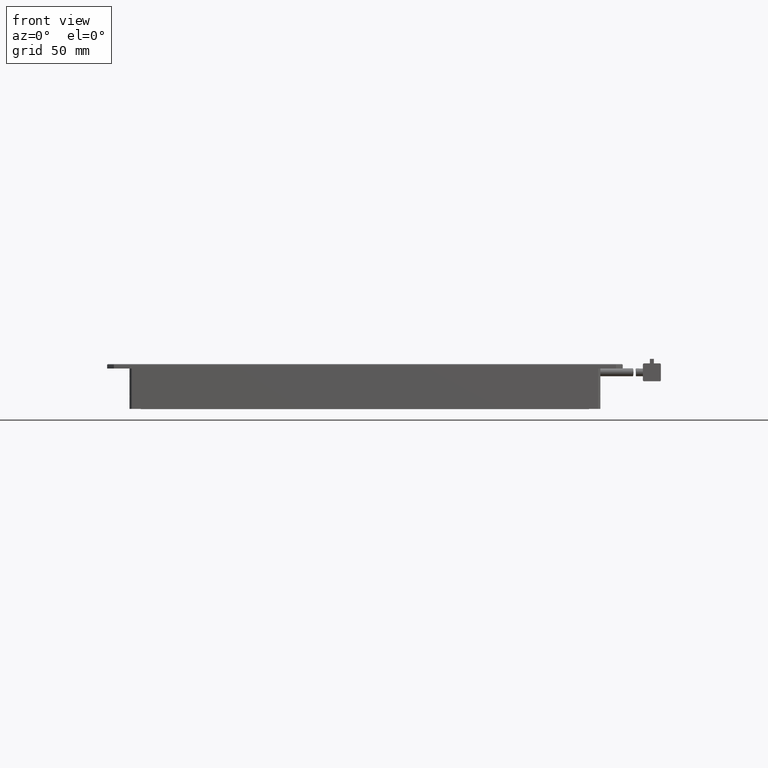
[diagram: clean part render]
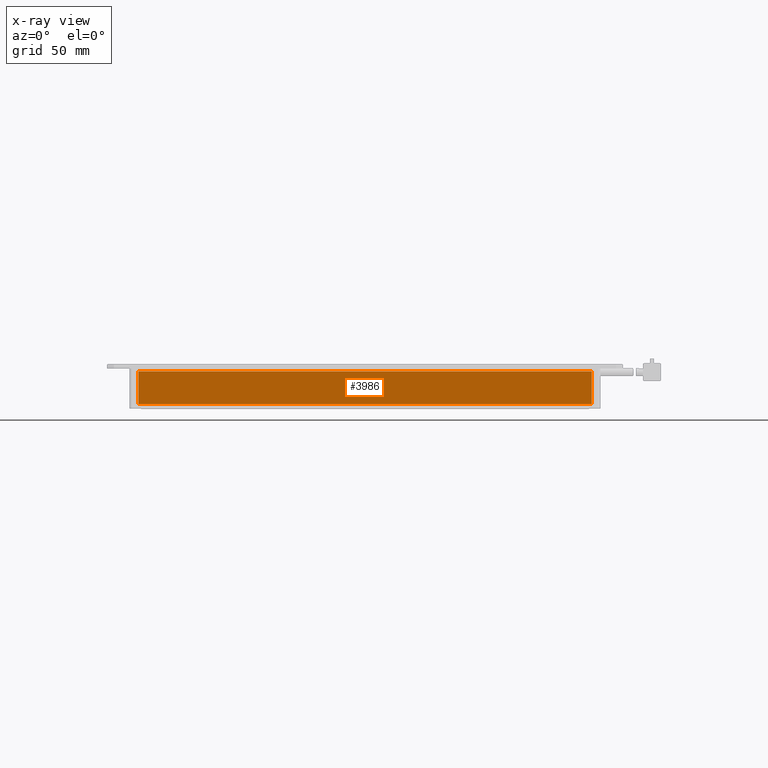
[diagram: x-ray — body ghosted, one internal face saturated and labeled with its STEP entity id]
A machine part, front view, then the same camera in x-ray: the body is ghosted and one INTERNAL B-rep face — a face not visible from any outside direction — is saturated and labeled: STEP entity #3986.
In plain terms, the highlighted planar face has unit normal (-0, 1, 0).
Its self-contained STEP definition (entity closure, byte-faithful):
#29 = LINE ( 'NONE', #1606, #17887 ) ;
#139 = ORIENTED_EDGE ( 'NONE', *, *, #12887, .T. ) ;
#178 = ORIENTED_EDGE ( 'NONE', *, *, #4832, .T. ) ;
#456 = DIRECTION ( 'NONE',  ( -1.000000000000000000, -1.243375699538492300E-016, -4.287502412201677900E-018 ) ) ;
#458 = CARTESIAN_POINT ( 'NONE',  ( 119.8157505824761700, -133.3787539827808100, -16.00000000002364700 ) ) ;
#1473 = EDGE_CURVE ( 'NONE', #8715, #20267, #29, .T. ) ;
#1548 = DIRECTION ( 'NONE',  ( 1.000000000000000000, 1.243375699538492300E-016, 1.243375699538492300E-016 ) ) ;
#1606 = CARTESIAN_POINT ( 'NONE',  ( 119.8157505824761700, -133.3787539827808100, -2.364775042451583400E-011 ) ) ;
#1843 = CARTESIAN_POINT ( 'NONE',  ( -82.48424941752384100, -133.3787539827808400, -16.00000000002365400 ) ) ;
#2024 = VERTEX_POINT ( 'NONE', #8823 ) ;
#2322 = EDGE_LOOP ( 'NONE', ( #139, #178, #20952, #5956 ) ) ;
#3287 = DIRECTION ( 'NONE',  ( -1.243375699538492300E-016, 1.000000000000000000, 0.0000000000000000000 ) ) ;
#3986 = ADVANCED_FACE ( 'NONE', ( #16003 ), #15409, .T. ) ;
#4832 = EDGE_CURVE ( 'NONE', #14016, #2024, #16439, .T. ) ;
#4902 = CARTESIAN_POINT ( 'NONE',  ( 18.66575058247614600, -133.3787539827808100, -8.000000000023650400 ) ) ;
#5956 = ORIENTED_EDGE ( 'NONE', *, *, #1473, .T. ) ;
#6032 = DIRECTION ( 'NONE',  ( 1.243375699538492300E-016, 1.545983130202835100E-032, -1.000000000000000000 ) ) ;
#7319 = AXIS2_PLACEMENT_3D ( 'NONE', #4902, #3287, #1548 ) ;
#8170 = CARTESIAN_POINT ( 'NONE',  ( 119.8157505824761700, -133.3787539827808100, -1.300000000023622500 ) ) ;
#8715 = VERTEX_POINT ( 'NONE', #8170 ) ;
#8823 = CARTESIAN_POINT ( 'NONE',  ( -82.48424941752384100, -133.3787539827808400, -1.300000000023647800 ) ) ;
#10374 = EDGE_CURVE ( 'NONE', #2024, #8715, #13494, .T. ) ;
#11505 = VECTOR ( 'NONE', #456, 1000.000000000000000 ) ;
#12066 = LINE ( 'NONE', #14329, #11505 ) ;
#12887 = EDGE_CURVE ( 'NONE', #20267, #14016, #12066, .T. ) ;
#13463 = DIRECTION ( 'NONE',  ( 1.000000000000000000, 1.243375699538492300E-016, 1.243375699538492300E-016 ) ) ;
#13494 = LINE ( 'NONE', #15014, #17510 ) ;
#14016 = VERTEX_POINT ( 'NONE', #1843 ) ;
#14329 = CARTESIAN_POINT ( 'NONE',  ( 119.8157505824761700, -133.3787539827808100, -16.00000000002364700 ) ) ;
#15014 = CARTESIAN_POINT ( 'NONE',  ( 18.66575058247614600, -133.3787539827808100, -1.300000000023635600 ) ) ;
#15409 = PLANE ( 'NONE',  #7319 ) ;
#15947 = CARTESIAN_POINT ( 'NONE',  ( -82.48424941752384100, -133.3787539827808400, -2.364775042451583400E-011 ) ) ;
#16003 = FACE_OUTER_BOUND ( 'NONE', #2322, .T. ) ;
#16439 = LINE ( 'NONE', #15947, #20496 ) ;
#17510 = VECTOR ( 'NONE', #13463, 1000.000000000000000 ) ;
#17887 = VECTOR ( 'NONE', #6032, 1000.000000000000000 ) ;
#20267 = VERTEX_POINT ( 'NONE', #458 ) ;
#20496 = VECTOR ( 'NONE', #21155, 1000.000000000000000 ) ;
#20952 = ORIENTED_EDGE ( 'NONE', *, *, #10374, .T. ) ;
#21155 = DIRECTION ( 'NONE',  ( -1.243375699538492300E-016, -1.545983130202835100E-032, 1.000000000000000000 ) ) ;